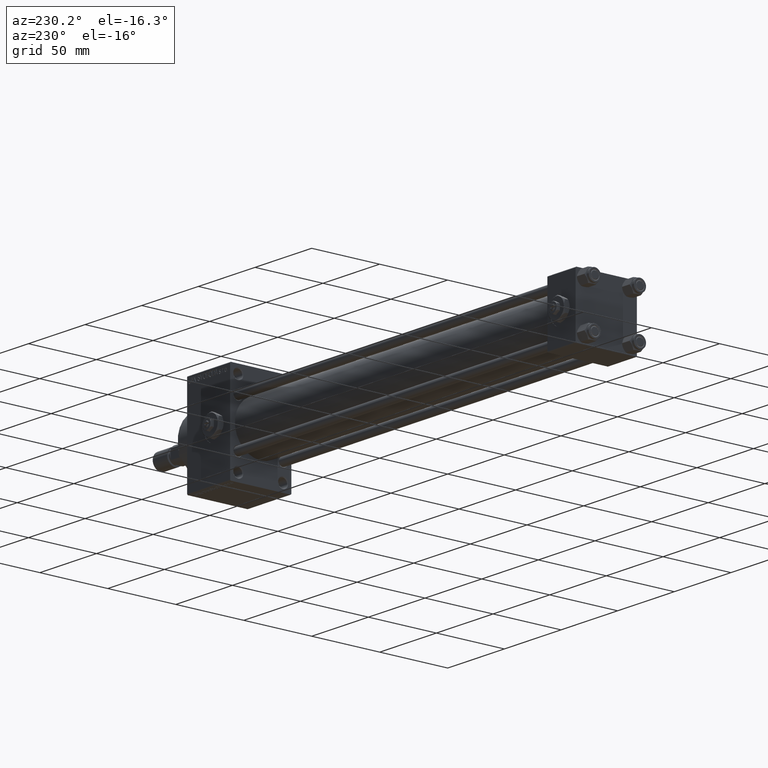
[diagram: clean part render]
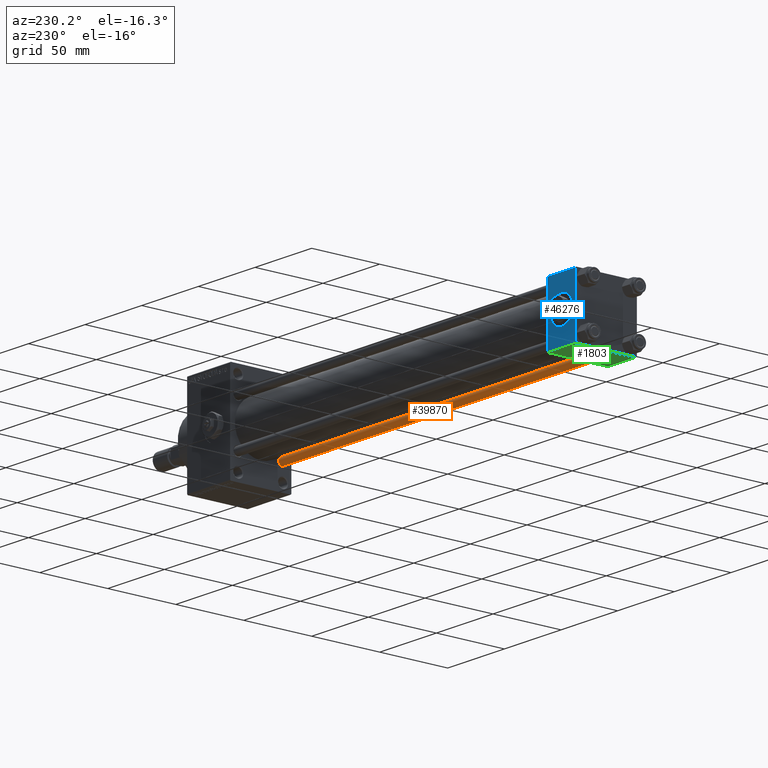
[diagram: same view with three faces highlighted in distinct colors, each labeled with its STEP entity id]
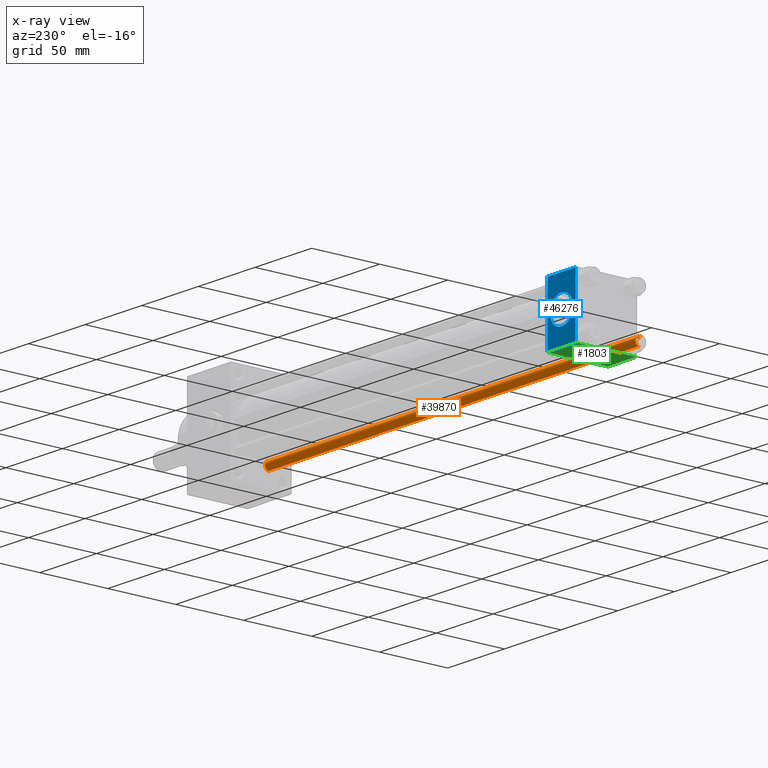
[diagram: x-ray of the same camera — body ghosted, the three highlighted faces saturated]
A machine part, auxiliary view with three faces highlighted in distinct colors.
The next image is the same camera in x-ray (body ghosted, the three faces saturated) — at least one of them is partly hidden behind the body in this view.
Their STEP definitions:

[orange] entity #39870 — the highlighted cylindrical surface (edge-blend (fillet) strip) has radius 3 mm, axis along (-1, 0, 0).
#1236 = EDGE_CURVE ( 'NONE', #14699, #28025, #22921, .T. ) ;
#3795 = VECTOR ( 'NONE', #44519, 1000.000000000000000 ) ;
#4768 = DIRECTION ( 'NONE',  ( -0.000000000000000000, -0.000000000000000000, -1.000000000000000000 ) ) ;
#8528 = CYLINDRICAL_SURFACE ( 'NONE', #9337, 3.000000000000000444 ) ;
#9337 = AXIS2_PLACEMENT_3D ( 'NONE', #16018, #4768, #44028 ) ;
#10394 = CARTESIAN_POINT ( 'NONE',  ( 3.000000000000000444, 3.673940397442060361E-16, 327.5000000000000000 ) ) ;
#11511 = CARTESIAN_POINT ( 'NONE',  ( -3.000000000000000444, 0.000000000000000000, 327.5000000000000000 ) ) ;
#13267 = VECTOR ( 'NONE', #26916, 1000.000000000000000 ) ;
#14699 = VERTEX_POINT ( 'NONE', #10394 ) ;
#14945 = VERTEX_POINT ( 'NONE', #20749 ) ;
#16018 = CARTESIAN_POINT ( 'NONE',  ( 0.000000000000000000, 0.000000000000000000, 328.0000000000000000 ) ) ;
#18317 = CIRCLE ( 'NONE', #25538, 3.000000000000000444 ) ;
#18476 = CIRCLE ( 'NONE', #46524, 3.000000000000000444 ) ;
#18570 = ORIENTED_EDGE ( 'NONE', *, *, #1236, .F. ) ;
#18848 = CARTESIAN_POINT ( 'NONE',  ( 0.000000000000000000, 0.000000000000000000, 327.5000000000000000 ) ) ;
#20749 = CARTESIAN_POINT ( 'NONE',  ( -3.000000000000000444, 0.000000000000000000, 0.5000000000000559552 ) ) ;
#21887 = ORIENTED_EDGE ( 'NONE', *, *, #46523, .T. ) ;
#22921 = LINE ( 'NONE', #41733, #13267 ) ;
#25538 = AXIS2_PLACEMENT_3D ( 'NONE', #18848, #37908, #34143 ) ;
#26916 = DIRECTION ( 'NONE',  ( -0.000000000000000000, -0.000000000000000000, -1.000000000000000000 ) ) ;
#28025 = VERTEX_POINT ( 'NONE', #30586 ) ;
#28708 = LINE ( 'NONE', #44035, #3795 ) ;
#28935 = EDGE_CURVE ( 'NONE', #14945, #28025, #18476, .T. ) ;
#30586 = CARTESIAN_POINT ( 'NONE',  ( 3.000000000000000444, 3.673940397442060361E-16, 0.5000000000000559552 ) ) ;
#31453 = DIRECTION ( 'NONE',  ( -0.000000000000000000, -0.000000000000000000, 1.000000000000000000 ) ) ;
#31455 = ORIENTED_EDGE ( 'NONE', *, *, #41330, .T. ) ;
#31616 = ORIENTED_EDGE ( 'NONE', *, *, #28935, .T. ) ;
#34143 = DIRECTION ( 'NONE',  ( 1.000000000000000000, 0.000000000000000000, 0.000000000000000000 ) ) ;
#34433 = EDGE_LOOP ( 'NONE', ( #18570, #21887, #31455, #31616 ) ) ;
#37908 = DIRECTION ( 'NONE',  ( 0.000000000000000000, 0.000000000000000000, -1.000000000000000000 ) ) ;
#38304 = VERTEX_POINT ( 'NONE', #11511 ) ;
#39870 = ADVANCED_FACE ( 'NONE', ( #44511 ), #8528, .T. ) ;
#41330 = EDGE_CURVE ( 'NONE', #38304, #14945, #28708, .T. ) ;
#41733 = CARTESIAN_POINT ( 'NONE',  ( 3.000000000000000444, 3.673940397442060361E-16, 328.0000000000000000 ) ) ;
#41773 = CARTESIAN_POINT ( 'NONE',  ( 0.000000000000000000, 0.000000000000000000, 0.5000000000000559552 ) ) ;
#44028 = DIRECTION ( 'NONE',  ( -1.000000000000000000, 0.000000000000000000, 0.000000000000000000 ) ) ;
#44035 = CARTESIAN_POINT ( 'NONE',  ( -3.000000000000000444, 0.000000000000000000, 328.0000000000000000 ) ) ;
#44511 = FACE_OUTER_BOUND ( 'NONE', #34433, .T. ) ;
#44519 = DIRECTION ( 'NONE',  ( -0.000000000000000000, -0.000000000000000000, -1.000000000000000000 ) ) ;
#46523 = EDGE_CURVE ( 'NONE', #14699, #38304, #18317, .T. ) ;
#46524 = AXIS2_PLACEMENT_3D ( 'NONE', #41773, #31453, #46777 ) ;
#46777 = DIRECTION ( 'NONE',  ( 1.000000000000000000, 0.000000000000000000, 0.000000000000000000 ) ) ;

[blue] entity #46276 — the highlighted planar face has unit normal (0, 1, 0).
#411 = VERTEX_POINT ( 'NONE', #26034 ) ;
#1261 = LINE ( 'NONE', #1761, #45613 ) ;
#1761 = CARTESIAN_POINT ( 'NONE',  ( 25.00000000000000000, 22.50000000000000000, -21.99999999999998224 ) ) ;
#2914 = EDGE_LOOP ( 'NONE', ( #23677, #38798 ) ) ;
#3626 = DIRECTION ( 'NONE',  ( 0.000000000000000000, 0.000000000000000000, 1.000000000000000000 ) ) ;
#4730 = CARTESIAN_POINT ( 'NONE',  ( 0.000000000000000000, 22.50000000000000000, 22.50000000000000355 ) ) ;
#6922 = CARTESIAN_POINT ( 'NONE',  ( 25.00000000000000000, 22.50000000000000000, 22.50000000000000355 ) ) ;
#8279 = CARTESIAN_POINT ( 'NONE',  ( 12.50000000000000178, 22.50000000000000000, -9.999999999999996447 ) ) ;
#10791 = VECTOR ( 'NONE', #37889, 1000.000000000000000 ) ;
#11007 = AXIS2_PLACEMENT_3D ( 'NONE', #23979, #39757, #31722 ) ;
#13050 = CIRCLE ( 'NONE', #41843, 9.999999999999996447 ) ;
#13185 = EDGE_CURVE ( 'NONE', #34060, #31870, #39046, .T. ) ;
#14155 = DIRECTION ( 'NONE',  ( 0.000000000000000000, 1.000000000000000000, 0.000000000000000000 ) ) ;
#14340 = CARTESIAN_POINT ( 'NONE',  ( 25.00000000000000000, 22.50000000000000000, 22.50000000000000355 ) ) ;
#14819 = DIRECTION ( 'NONE',  ( 1.000000000000000000, 0.000000000000000000, 0.000000000000000000 ) ) ;
#14976 = CIRCLE ( 'NONE', #11007, 9.999999999999996447 ) ;
#15834 = CARTESIAN_POINT ( 'NONE',  ( 25.00000000000000000, 22.50000000000000000, -21.99999999999996803 ) ) ;
#17921 = FACE_BOUND ( 'NONE', #2914, .T. ) ;
#18328 = CARTESIAN_POINT ( 'NONE',  ( 25.00000000000000000, 22.50000000000000000, 21.99999999999999645 ) ) ;
#18425 = DIRECTION ( 'NONE',  ( -0.000000000000000000, 1.000000000000000000, 0.000000000000000000 ) ) ;
#19874 = EDGE_LOOP ( 'NONE', ( #31939, #23193, #24920, #41858 ) ) ;
#22167 = CARTESIAN_POINT ( 'NONE',  ( 12.50000000000000000, 22.50000000000000000, 0.000000000000000000 ) ) ;
#23193 = ORIENTED_EDGE ( 'NONE', *, *, #46841, .T. ) ;
#23677 = ORIENTED_EDGE ( 'NONE', *, *, #41282, .F. ) ;
#23979 = CARTESIAN_POINT ( 'NONE',  ( 12.50000000000000000, 22.50000000000000000, 0.000000000000000000 ) ) ;
#24039 = CARTESIAN_POINT ( 'NONE',  ( 0.000000000000000000, 22.50000000000000000, -21.99999999999996803 ) ) ;
#24862 = CARTESIAN_POINT ( 'NONE',  ( 12.50000000000000000, 22.50000000000000000, 9.999999999999996447 ) ) ;
#24920 = ORIENTED_EDGE ( 'NONE', *, *, #13185, .F. ) ;
#25921 = PLANE ( 'NONE',  #45577 ) ;
#26034 = CARTESIAN_POINT ( 'NONE',  ( 25.00000000000000000, 22.50000000000000000, 21.99999999999999645 ) ) ;
#27980 = EDGE_CURVE ( 'NONE', #34060, #411, #41886, .T. ) ;
#29812 = CARTESIAN_POINT ( 'NONE',  ( 0.000000000000000000, 22.50000000000000000, 21.99999999999999645 ) ) ;
#31496 = DIRECTION ( 'NONE',  ( 0.000000000000000000, 0.000000000000000000, -1.000000000000000000 ) ) ;
#31722 = DIRECTION ( 'NONE',  ( 0.000000000000000000, 0.000000000000000000, 1.000000000000000000 ) ) ;
#31870 = VERTEX_POINT ( 'NONE', #24039 ) ;
#31939 = ORIENTED_EDGE ( 'NONE', *, *, #36312, .T. ) ;
#32779 = VERTEX_POINT ( 'NONE', #15834 ) ;
#33717 = DIRECTION ( 'NONE',  ( 0.000000000000000000, -0.000000000000000000, 1.000000000000000000 ) ) ;
#34060 = VERTEX_POINT ( 'NONE', #29812 ) ;
#35875 = EDGE_CURVE ( 'NONE', #39705, #45133, #13050, .T. ) ;
#36312 = EDGE_CURVE ( 'NONE', #411, #32779, #41654, .T. ) ;
#37889 = DIRECTION ( 'NONE',  ( 0.000000000000000000, 0.000000000000000000, -1.000000000000000000 ) ) ;
#38798 = ORIENTED_EDGE ( 'NONE', *, *, #35875, .F. ) ;
#39046 = LINE ( 'NONE', #4730, #47745 ) ;
#39705 = VERTEX_POINT ( 'NONE', #8279 ) ;
#39757 = DIRECTION ( 'NONE',  ( 0.000000000000000000, 1.000000000000000000, 0.000000000000000000 ) ) ;
#41282 = EDGE_CURVE ( 'NONE', #45133, #39705, #14976, .T. ) ;
#41654 = LINE ( 'NONE', #14340, #10791 ) ;
#41843 = AXIS2_PLACEMENT_3D ( 'NONE', #22167, #14155, #3626 ) ;
#41858 = ORIENTED_EDGE ( 'NONE', *, *, #27980, .T. ) ;
#41886 = LINE ( 'NONE', #18328, #44899 ) ;
#44899 = VECTOR ( 'NONE', #14819, 1000.000000000000000 ) ;
#45015 = FACE_OUTER_BOUND ( 'NONE', #19874, .T. ) ;
#45133 = VERTEX_POINT ( 'NONE', #24862 ) ;
#45577 = AXIS2_PLACEMENT_3D ( 'NONE', #6922, #18425, #33717 ) ;
#45613 = VECTOR ( 'NONE', #46878, 1000.000000000000000 ) ;
#46276 = ADVANCED_FACE ( 'NONE', ( #17921, #45015 ), #25921, .T. ) ;
#46841 = EDGE_CURVE ( 'NONE', #32779, #31870, #1261, .T. ) ;
#46878 = DIRECTION ( 'NONE',  ( -1.000000000000000000, 0.000000000000000000, 0.000000000000000000 ) ) ;
#47745 = VECTOR ( 'NONE', #31496, 1000.000000000000000 ) ;

[green] entity #1803 — the highlighted planar face has unit normal (0, 0, -1).
#854 = VERTEX_POINT ( 'NONE', #10722 ) ;
#1186 = LINE ( 'NONE', #42549, #15108 ) ;
#1535 = VERTEX_POINT ( 'NONE', #11779 ) ;
#1803 = ADVANCED_FACE ( 'NONE', ( #29985 ), #34275, .T. ) ;
#3134 = ORIENTED_EDGE ( 'NONE', *, *, #34941, .F. ) ;
#3468 = DIRECTION ( 'NONE',  ( 0.000000000000000000, 1.000000000000000000, 2.312964634635742957E-16 ) ) ;
#4576 = DIRECTION ( 'NONE',  ( -1.000000000000000000, 0.000000000000000000, 0.000000000000000000 ) ) ;
#10135 = VERTEX_POINT ( 'NONE', #20228 ) ;
#10722 = CARTESIAN_POINT ( 'NONE',  ( 25.00000000000000000, -21.99999999999997158, -22.50000000000000711 ) ) ;
#11213 = ORIENTED_EDGE ( 'NONE', *, *, #31485, .T. ) ;
#11779 = CARTESIAN_POINT ( 'NONE',  ( 0.000000000000000000, -21.99999999999997158, -22.50000000000000711 ) ) ;
#13555 = DIRECTION ( 'NONE',  ( 0.000000000000000000, -1.000000000000000000, -2.312964634635742957E-16 ) ) ;
#14077 = AXIS2_PLACEMENT_3D ( 'NONE', #40803, #41048, #3468 ) ;
#14349 = CARTESIAN_POINT ( 'NONE',  ( 25.00000000000000000, 21.99999999999999289, -22.49999999999999645 ) ) ;
#14579 = VECTOR ( 'NONE', #27207, 1000.000000000000000 ) ;
#15108 = VECTOR ( 'NONE', #30983, 1000.000000000000000 ) ;
#16962 = EDGE_LOOP ( 'NONE', ( #3134, #38424, #21646, #11213 ) ) ;
#17297 = LINE ( 'NONE', #32574, #47282 ) ;
#20197 = LINE ( 'NONE', #23953, #14579 ) ;
#20228 = CARTESIAN_POINT ( 'NONE',  ( 0.000000000000000000, 21.99999999999999289, -22.49999999999999645 ) ) ;
#21646 = ORIENTED_EDGE ( 'NONE', *, *, #30677, .T. ) ;
#23590 = CARTESIAN_POINT ( 'NONE',  ( 0.000000000000000000, -21.99999999999998579, -22.50000000000000711 ) ) ;
#23953 = CARTESIAN_POINT ( 'NONE',  ( 0.000000000000000000, 22.50000000000000000, -22.49999999999999645 ) ) ;
#24881 = VECTOR ( 'NONE', #4576, 1000.000000000000000 ) ;
#27207 = DIRECTION ( 'NONE',  ( 0.000000000000000000, -1.000000000000000000, -2.312964634635742957E-16 ) ) ;
#29985 = FACE_OUTER_BOUND ( 'NONE', #16962, .T. ) ;
#30677 = EDGE_CURVE ( 'NONE', #40366, #854, #17297, .T. ) ;
#30983 = DIRECTION ( 'NONE',  ( 1.000000000000000000, 0.000000000000000000, 0.000000000000000000 ) ) ;
#31485 = EDGE_CURVE ( 'NONE', #854, #1535, #39385, .T. ) ;
#32574 = CARTESIAN_POINT ( 'NONE',  ( 25.00000000000000000, 22.50000000000000000, -22.49999999999999645 ) ) ;
#34275 = PLANE ( 'NONE',  #14077 ) ;
#34941 = EDGE_CURVE ( 'NONE', #10135, #1535, #20197, .T. ) ;
#38424 = ORIENTED_EDGE ( 'NONE', *, *, #45985, .T. ) ;
#39385 = LINE ( 'NONE', #23590, #24881 ) ;
#40366 = VERTEX_POINT ( 'NONE', #14349 ) ;
#40803 = CARTESIAN_POINT ( 'NONE',  ( 25.00000000000000000, 22.50000000000000000, -22.49999999999999645 ) ) ;
#41048 = DIRECTION ( 'NONE',  ( 0.000000000000000000, 2.312964634635742957E-16, -1.000000000000000000 ) ) ;
#42549 = CARTESIAN_POINT ( 'NONE',  ( 25.00000000000000000, 21.99999999999999289, -22.49999999999999645 ) ) ;
#45985 = EDGE_CURVE ( 'NONE', #10135, #40366, #1186, .T. ) ;
#47282 = VECTOR ( 'NONE', #13555, 1000.000000000000000 ) ;